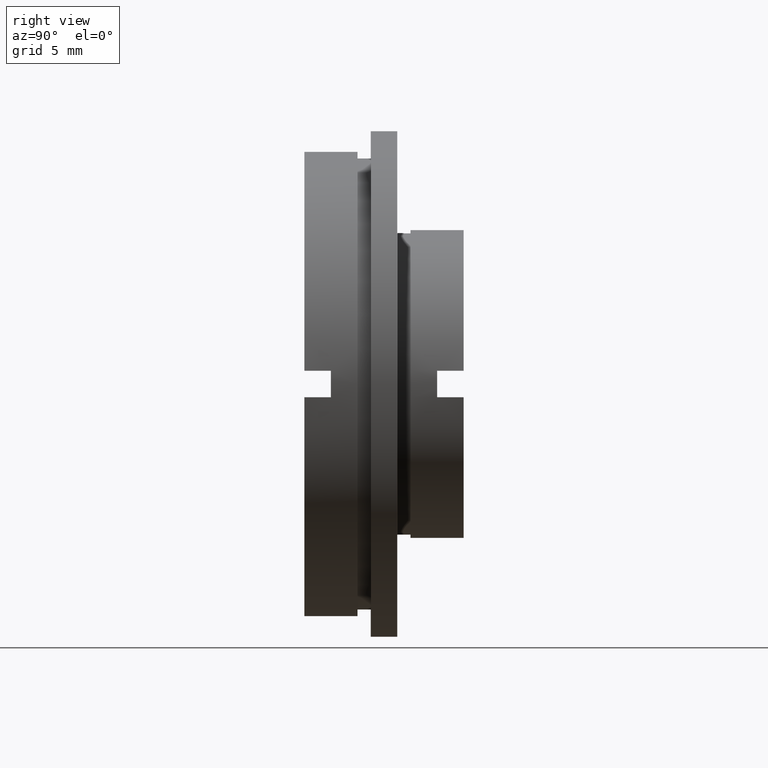
[diagram: clean part render]
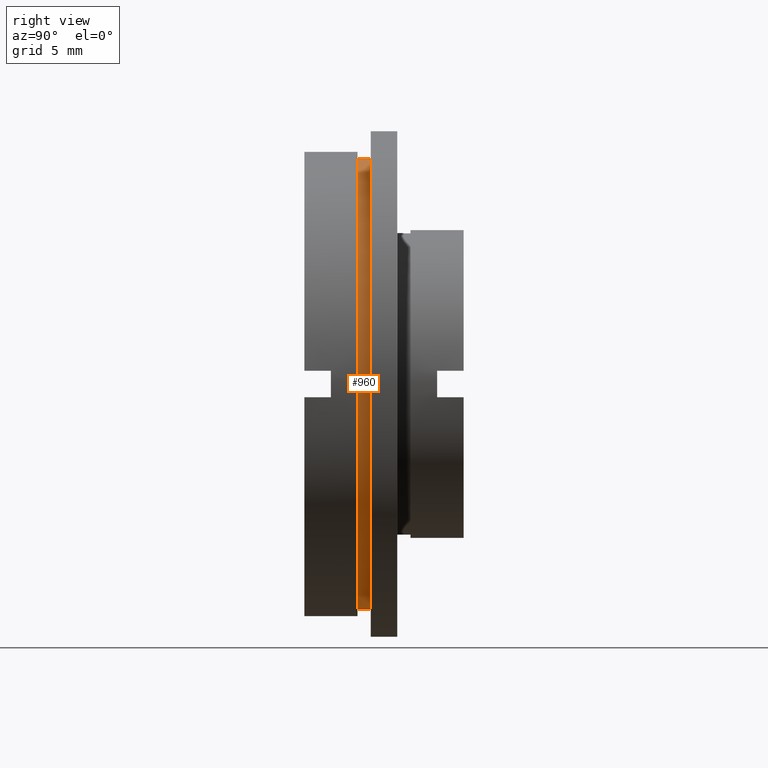
[diagram: same view with one face highlighted and labeled with its STEP entity id]
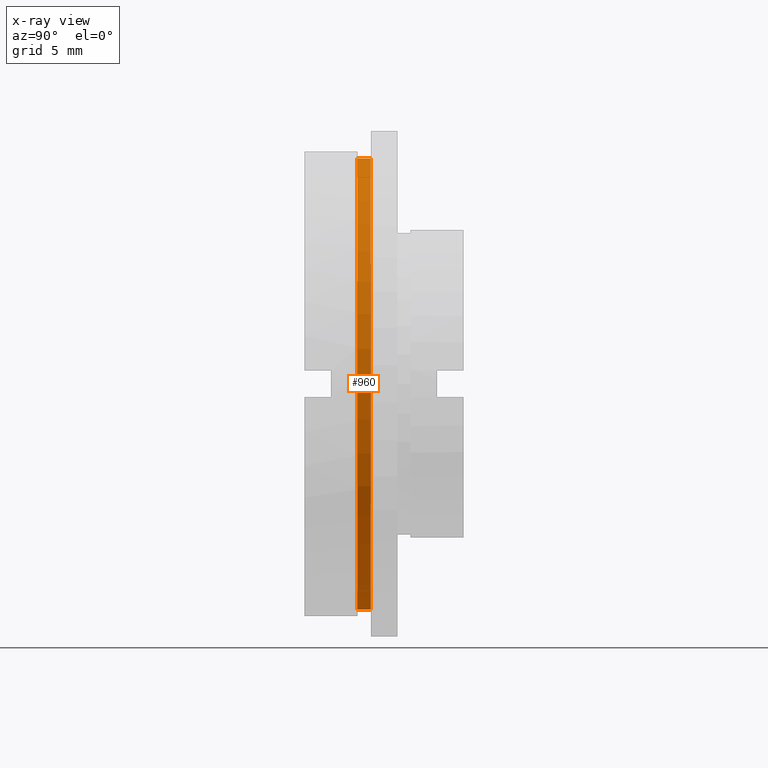
[diagram: x-ray of the same camera — body ghosted, the highlighted face saturated]
A machine part, right view. The second image highlights one B-rep face of the part: STEP entity #960.
The next image is the same camera in x-ray: the body ghosted, the highlighted face saturated — about 0% of this face is hidden behind the body in this view.
In plain terms, the highlighted cylindrical surface (partial cylindrical patch) has radius 17 mm, axis along (-0, 1, -0).
Its self-contained STEP definition (entity closure, byte-faithful):
#18 = DIRECTION ( 'NONE',  ( -0.0000000000000000000, 1.000000000000000000, -0.0000000000000000000 ) ) ;
#84 = FACE_OUTER_BOUND ( 'NONE', #722, .T. ) ;
#97 = CARTESIAN_POINT ( 'NONE',  ( 0.0000000000000000000, 5.000000000000000900, 17.00000000000000000 ) ) ;
#102 = CARTESIAN_POINT ( 'NONE',  ( 0.0000000000000000000, 22.67749945107591400, 0.0000000000000000000 ) ) ;
#141 = DIRECTION ( 'NONE',  ( 0.0000000000000000000, 0.0000000000000000000, 1.000000000000000000 ) ) ;
#273 = CARTESIAN_POINT ( 'NONE',  ( 0.0000000000000000000, 4.000000000000000000, 16.99999999999999600 ) ) ;
#301 = CARTESIAN_POINT ( 'NONE',  ( 2.081899558550499900E-015, 4.000000000000000000, -16.99999999999999600 ) ) ;
#348 = AXIS2_PLACEMENT_3D ( 'NONE', #102, #696, #424 ) ;
#371 = ORIENTED_EDGE ( 'NONE', *, *, #647, .F. ) ;
#424 = DIRECTION ( 'NONE',  ( 0.0000000000000000000, 0.0000000000000000000, 1.000000000000000000 ) ) ;
#433 = VERTEX_POINT ( 'NONE', #301 ) ;
#446 = CIRCLE ( 'NONE', #611, 17.00000000000000000 ) ;
#513 = CARTESIAN_POINT ( 'NONE',  ( 0.0000000000000000000, 5.000000000000000900, 0.0000000000000000000 ) ) ;
#517 = DIRECTION ( 'NONE',  ( -0.0000000000000000000, 1.000000000000000000, -0.0000000000000000000 ) ) ;
#519 = CARTESIAN_POINT ( 'NONE',  ( 2.081899558550500300E-015, 22.67749945107591400, -17.00000000000000000 ) ) ;
#540 = DIRECTION ( 'NONE',  ( -0.0000000000000000000, 1.000000000000000000, -0.0000000000000000000 ) ) ;
#554 = EDGE_CURVE ( 'NONE', #641, #1034, #1231, .T. ) ;
#565 = CIRCLE ( 'NONE', #1219, 16.99999999999999600 ) ;
#600 = VECTOR ( 'NONE', #18, 1000.000000000000000 ) ;
#611 = AXIS2_PLACEMENT_3D ( 'NONE', #513, #517, #141 ) ;
#641 = VERTEX_POINT ( 'NONE', #273 ) ;
#647 = EDGE_CURVE ( 'NONE', #1034, #1139, #446, .T. ) ;
#691 = CARTESIAN_POINT ( 'NONE',  ( 2.081899558550500300E-015, 5.000000000000000900, -17.00000000000000000 ) ) ;
#696 = DIRECTION ( 'NONE',  ( -0.0000000000000000000, 1.000000000000000000, -0.0000000000000000000 ) ) ;
#722 = EDGE_LOOP ( 'NONE', ( #1172, #1261, #371, #880 ) ) ;
#735 = EDGE_CURVE ( 'NONE', #641, #433, #565, .T. ) ;
#747 = LINE ( 'NONE', #519, #760 ) ;
#760 = VECTOR ( 'NONE', #540, 1000.000000000000000 ) ;
#880 = ORIENTED_EDGE ( 'NONE', *, *, #554, .F. ) ;
#885 = EDGE_CURVE ( 'NONE', #433, #1139, #747, .T. ) ;
#960 = ADVANCED_FACE ( 'NONE', ( #84 ), #1048, .T. ) ;
#984 = DIRECTION ( 'NONE',  ( 0.0000000000000000000, 0.0000000000000000000, 1.000000000000000000 ) ) ;
#1001 = DIRECTION ( 'NONE',  ( -0.0000000000000000000, 1.000000000000000000, -0.0000000000000000000 ) ) ;
#1004 = CARTESIAN_POINT ( 'NONE',  ( 0.0000000000000000000, 4.000000000000000000, 0.0000000000000000000 ) ) ;
#1034 = VERTEX_POINT ( 'NONE', #97 ) ;
#1048 = CYLINDRICAL_SURFACE ( 'NONE', #348, 17.00000000000000000 ) ;
#1139 = VERTEX_POINT ( 'NONE', #691 ) ;
#1172 = ORIENTED_EDGE ( 'NONE', *, *, #735, .T. ) ;
#1219 = AXIS2_PLACEMENT_3D ( 'NONE', #1004, #1001, #984 ) ;
#1231 = LINE ( 'NONE', #1243, #600 ) ;
#1243 = CARTESIAN_POINT ( 'NONE',  ( 0.0000000000000000000, 22.67749945107591400, 17.00000000000000000 ) ) ;
#1261 = ORIENTED_EDGE ( 'NONE', *, *, #885, .T. ) ;